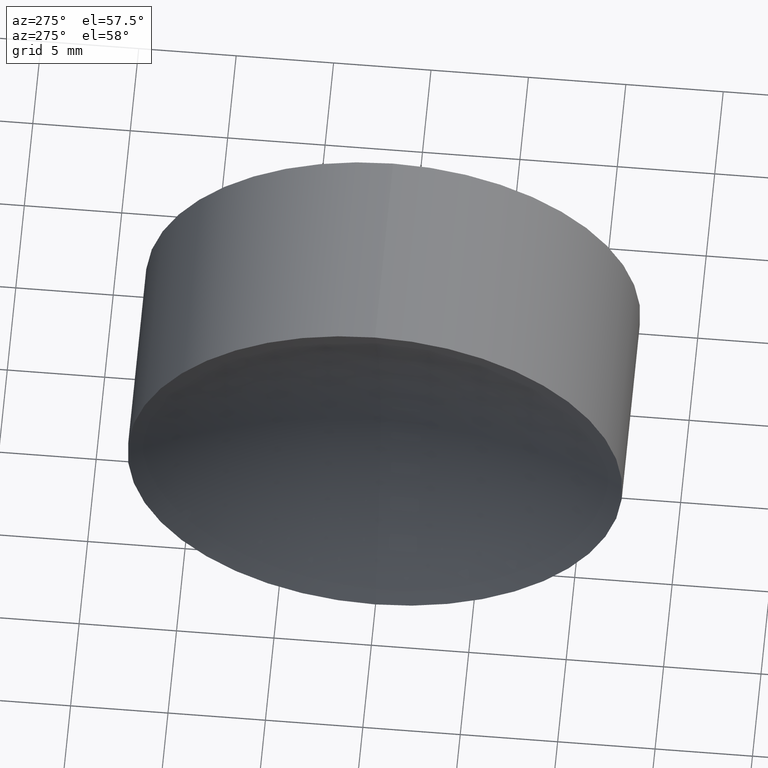
[diagram: clean part render]
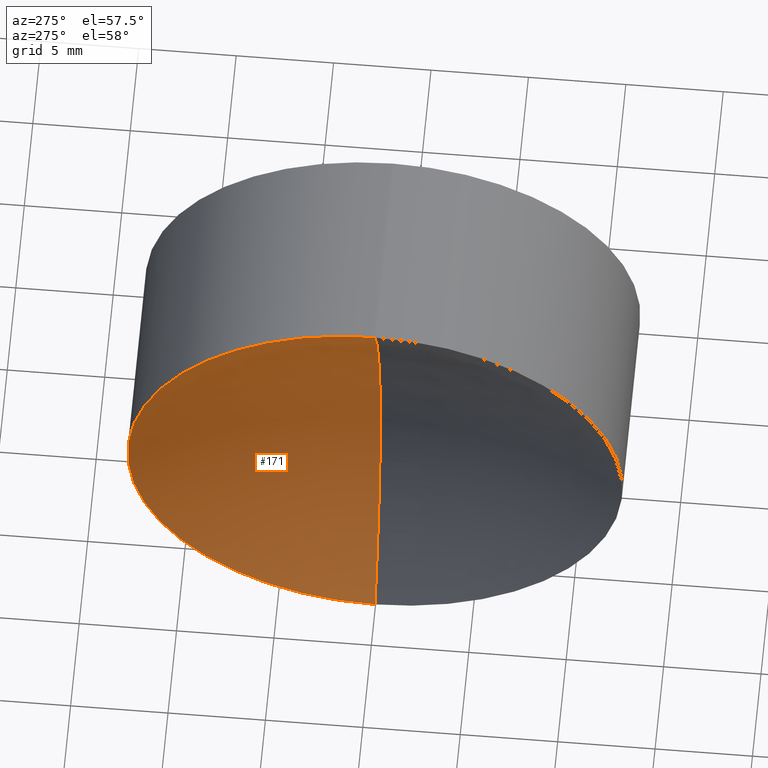
[diagram: same view with one face highlighted and labeled with its STEP entity id]
A machine part, auxiliary view. The second image highlights one B-rep face of the part: STEP entity #171.
In plain terms, the highlighted spherical surface has radius 27.1 mm.
Its self-contained STEP definition (entity closure, byte-faithful):
#1 = EDGE_CURVE ( 'NONE', #156, #158, #60, .T. ) ;
#14 = CARTESIAN_POINT ( 'NONE',  ( 233.1833917553725000, 0.0000000000000000000, -7.846294210438532900E-022 ) ) ;
#16 = EDGE_CURVE ( 'NONE', #320, #158, #213, .T. ) ;
#20 = DIRECTION ( 'NONE',  ( 0.0000000000000000000, -1.000000000000000000, 0.0000000000000000000 ) ) ;
#60 = CIRCLE ( 'NONE', #312, 27.09999999999998000 ) ;
#69 = DIRECTION ( 'NONE',  ( 0.0000000000000000000, -1.224646799147353500E-016, 1.000000000000000000 ) ) ;
#92 = CARTESIAN_POINT ( 'NONE',  ( 260.2833917553724600, 0.0000000000000000000, -3.318793610318745300E-015 ) ) ;
#93 = DIRECTION ( 'NONE',  ( 2.249639673992786400E-032, 1.000000000000000000, 1.224646799147353200E-016 ) ) ;
#118 = DIRECTION ( 'NONE',  ( 0.0000000000000000000, 0.0000000000000000000, 1.000000000000000000 ) ) ;
#127 = DIRECTION ( 'NONE',  ( 0.0000000000000000000, 0.0000000000000000000, 1.000000000000000000 ) ) ;
#144 = FACE_OUTER_BOUND ( 'NONE', #286, .T. ) ;
#149 = CARTESIAN_POINT ( 'NONE',  ( 257.1233165672844600, 0.0000000000000000000, -4.738269518283348700E-014 ) ) ;
#156 = VERTEX_POINT ( 'NONE', #92 ) ;
#158 = VERTEX_POINT ( 'NONE', #183 ) ;
#167 = AXIS2_PLACEMENT_3D ( 'NONE', #219, #20, #188 ) ;
#171 = ADVANCED_FACE ( 'NONE', ( #144 ), #217, .F. ) ;
#183 = CARTESIAN_POINT ( 'NONE',  ( 257.1233165672844600, 1.555301434917144000E-015, -12.70000000000004900 ) ) ;
#188 = DIRECTION ( 'NONE',  ( 0.0000000000000000000, 0.0000000000000000000, -1.000000000000000000 ) ) ;
#194 = AXIS2_PLACEMENT_3D ( 'NONE', #14, #343, #127 ) ;
#213 = CIRCLE ( 'NONE', #329, 12.70000000000004500 ) ;
#217 = SPHERICAL_SURFACE ( 'NONE', #194, 27.09999999999998000 ) ;
#219 = CARTESIAN_POINT ( 'NONE',  ( 233.1833917553725000, 0.0000000000000000000, -7.846294210438532900E-022 ) ) ;
#222 = CARTESIAN_POINT ( 'NONE',  ( 257.1233165672844600, 0.0000000000000000000, 12.69999999999999900 ) ) ;
#231 = ORIENTED_EDGE ( 'NONE', *, *, #1, .F. ) ;
#265 = ORIENTED_EDGE ( 'NONE', *, *, #16, .T. ) ;
#272 = ORIENTED_EDGE ( 'NONE', *, *, #335, .T. ) ;
#286 = EDGE_LOOP ( 'NONE', ( #231, #272, #265 ) ) ;
#287 = CARTESIAN_POINT ( 'NONE',  ( 233.1833917553725000, 0.0000000000000000000, -7.846294210438532900E-022 ) ) ;
#311 = DIRECTION ( 'NONE',  ( -1.000000000000000000, -0.0000000000000000000, 1.836970198721029700E-016 ) ) ;
#312 = AXIS2_PLACEMENT_3D ( 'NONE', #287, #93, #69 ) ;
#320 = VERTEX_POINT ( 'NONE', #222 ) ;
#322 = CIRCLE ( 'NONE', #167, 27.09999999999998000 ) ;
#329 = AXIS2_PLACEMENT_3D ( 'NONE', #149, #311, #118 ) ;
#335 = EDGE_CURVE ( 'NONE', #156, #320, #322, .T. ) ;
#343 = DIRECTION ( 'NONE',  ( -0.0000000000000000000, 1.000000000000000000, 0.0000000000000000000 ) ) ;